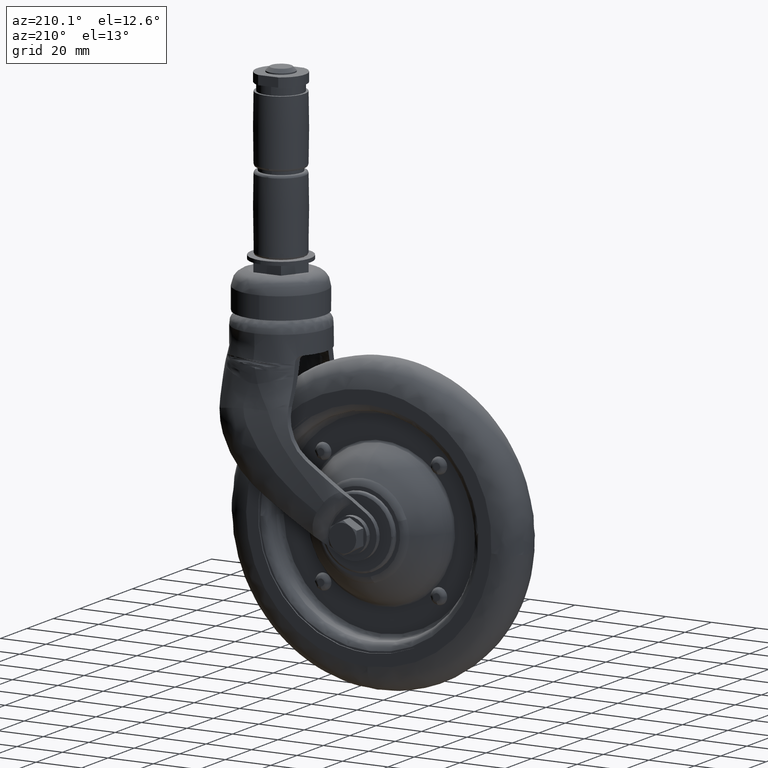
[diagram: clean part render]
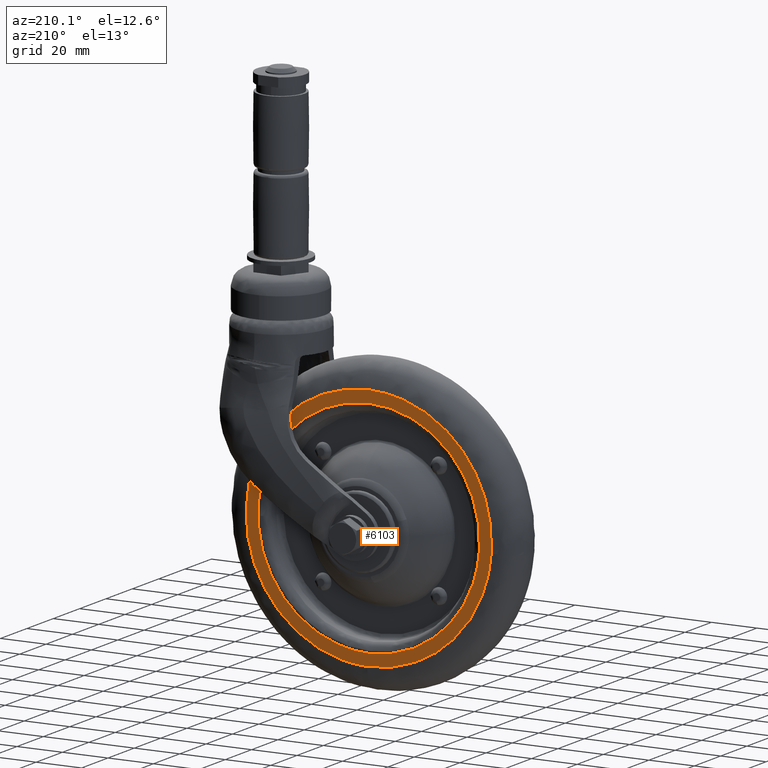
[diagram: same view with one face highlighted and labeled with its STEP entity id]
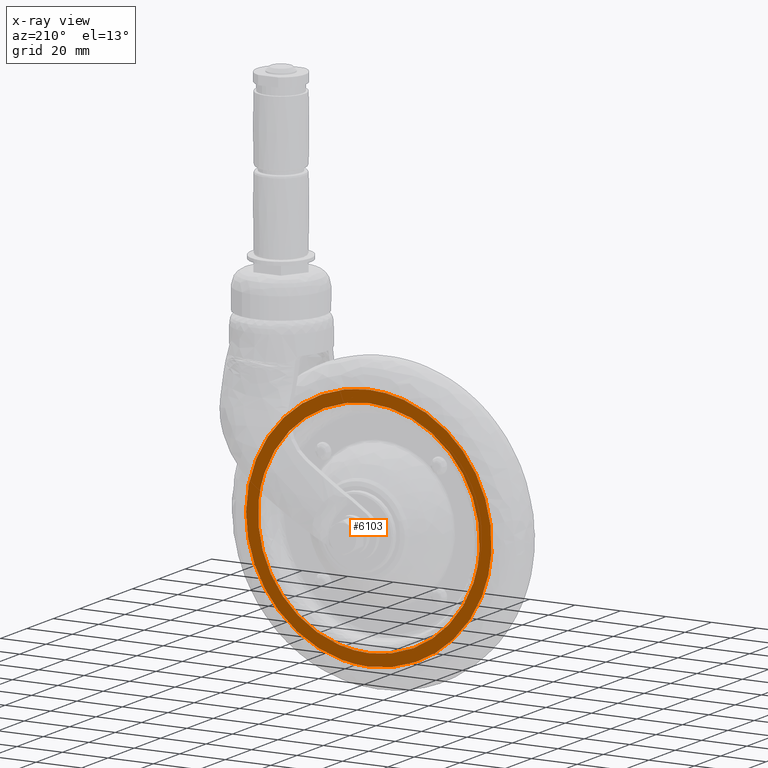
[diagram: x-ray of the same camera — body ghosted, the highlighted face saturated]
A machine part, auxiliary view. The second image highlights one B-rep face of the part: STEP entity #6103.
The next image is the same camera in x-ray: the body ghosted, the highlighted face saturated — about 0% of this face is hidden behind the body in this view.
In plain terms, the highlighted face is a freeform B-spline surface patch.
Its self-contained STEP definition (entity closure, byte-faithful):
#731=CARTESIAN_POINT('',(48.409216291978566,11.0,5.754153108510607));
#732=VERTEX_POINT('',#731);
#738=CARTESIAN_POINT('',(0.0,11.0,-48.750000000000000));
#739=VERTEX_POINT('',#738);
#740=CARTESIAN_POINT('',(48.409216291978574,11.000000000000002,5.754153108510607));
#741=CARTESIAN_POINT('',(48.750000000000000,11.000000000000004,2.887167833846134));
#742=CARTESIAN_POINT('',(48.750000000000000,11.0,0.0));
#743=CARTESIAN_POINT('',(48.750000000000007,11.0,-48.750000000000007));
#744=CARTESIAN_POINT('',(0.0,11.0,-48.750000000000000));
#752=(BOUNDED_CURVE()B_SPLINE_CURVE(2,(#740,#741,#742,#743,#744),.UNSPECIFIED.,.F.,.U.)B_SPLINE_CURVE_WITH_KNOTS((3,2,3),(0.229562528783874,0.250000000000000,0.500000000000000),.UNSPECIFIED.)CURVE()GEOMETRIC_REPRESENTATION_ITEM()RATIONAL_B_SPLINE_CURVE((0.956026862515906,0.976056013084406,1.0,0.707106781186547,1.0))REPRESENTATION_ITEM(''));
#753=EDGE_CURVE('',#732,#739,#752,.T.);
#755=CARTESIAN_POINT('',(-48.659073501435223,11.0,-2.976082320898624));
#756=VERTEX_POINT('',#755);
#757=CARTESIAN_POINT('',(0.0,11.0,-48.750000000000000));
#758=CARTESIAN_POINT('',(-45.859452847777590,10.999999999999998,-48.749999999999993));
#759=CARTESIAN_POINT('',(-48.659073501435223,10.999999999999998,-2.976082320898624));
#767=(BOUNDED_CURVE()B_SPLINE_CURVE(2,(#757,#758,#759),.UNSPECIFIED.,.F.,.U.)B_SPLINE_CURVE_WITH_KNOTS((3,3),(0.500000000000000,0.739333082741317),.UNSPECIFIED.)CURVE()GEOMETRIC_REPRESENTATION_ITEM()RATIONAL_B_SPLINE_CURVE((1.0,0.719603852109397,0.976072299926381))REPRESENTATION_ITEM(''));
#768=EDGE_CURVE('',#739,#756,#767,.T.);
#842=CARTESIAN_POINT('',(0.0,11.0,48.750000000000000));
#843=VERTEX_POINT('',#842);
#844=CARTESIAN_POINT('',(-48.659073501435223,10.999999999999998,-2.976082320898624));
#845=CARTESIAN_POINT('',(-48.750000000000007,11.0,-1.489430172453983));
#846=CARTESIAN_POINT('',(-48.750000000000000,11.0,0.0));
#847=CARTESIAN_POINT('',(-48.750000000000007,11.0,48.750000000000007));
#848=CARTESIAN_POINT('',(0.0,11.0,48.750000000000000));
#856=(BOUNDED_CURVE()B_SPLINE_CURVE(2,(#844,#845,#846,#847,#848),.UNSPECIFIED.,.F.,.U.)B_SPLINE_CURVE_WITH_KNOTS((3,2,3),(0.739333082741317,0.750000000000000,1.0),.UNSPECIFIED.)CURVE()GEOMETRIC_REPRESENTATION_ITEM()RATIONAL_B_SPLINE_CURVE((0.976072299926381,0.987502929077151,1.0,0.707106781186547,1.0))REPRESENTATION_ITEM(''));
#857=EDGE_CURVE('',#756,#843,#856,.T.);
#859=CARTESIAN_POINT('',(0.0,11.0,48.750000000000000));
#860=CARTESIAN_POINT('',(43.298522399489805,11.0,48.750000000000000));
#861=CARTESIAN_POINT('',(48.409216291978574,11.000000000000002,5.754153108510607));
#869=(BOUNDED_CURVE()B_SPLINE_CURVE(2,(#859,#860,#861),.UNSPECIFIED.,.F.,.U.)B_SPLINE_CURVE_WITH_KNOTS((3,3),(0.0,0.229562528783874),.UNSPECIFIED.)CURVE()GEOMETRIC_REPRESENTATION_ITEM()RATIONAL_B_SPLINE_CURVE((1.0,0.731050768102141,0.956026862515906))REPRESENTATION_ITEM(''));
#870=EDGE_CURVE('',#843,#732,#869,.T.);
#3306=CARTESIAN_POINT('',(-53.868546391014618,11.0,-3.765595585905555));
#3307=VERTEX_POINT('',#3306);
#3308=CARTESIAN_POINT('',(0.0,11.0,54.0));
#3309=VERTEX_POINT('',#3308);
#3310=CARTESIAN_POINT('',(-53.868546391014625,10.999999999999993,-3.765595585905555));
#3311=CARTESIAN_POINT('',(-54.0,10.999999999999996,-1.885092257811561));
#3312=CARTESIAN_POINT('',(-54.0,11.0,0.0));
#3313=CARTESIAN_POINT('',(-54.0,11.0,54.0));
#3314=CARTESIAN_POINT('',(0.0,11.0,54.0));
#3322=(BOUNDED_CURVE()B_SPLINE_CURVE(2,(#3310,#3311,#3312,#3313,#3314),.UNSPECIFIED.,.F.,.U.)B_SPLINE_CURVE_WITH_KNOTS((3,2,3),(0.737833686531463,0.750000000000000,1.0),.UNSPECIFIED.)CURVE()GEOMETRIC_REPRESENTATION_ITEM()RATIONAL_B_SPLINE_CURVE((0.972879876379301,0.985746277148427,1.0,0.707106781186548,1.0))REPRESENTATION_ITEM(''));
#3323=EDGE_CURVE('',#3307,#3309,#3322,.T.);
#3376=CARTESIAN_POINT('',(0.678566154199037,11.0,-53.995736389655782));
#3377=VERTEX_POINT('',#3376);
#3393=CARTESIAN_POINT('',(0.0,11.0,54.0));
#3394=CARTESIAN_POINT('',(54.0,11.0,54.0));
#3395=CARTESIAN_POINT('',(54.0,11.0,0.0));
#3396=CARTESIAN_POINT('',(53.999999999999993,11.0,-53.325644214077222));
#3397=CARTESIAN_POINT('',(0.678566154199037,10.999999999999996,-53.995736389655775));
#3405=(BOUNDED_CURVE()B_SPLINE_CURVE(2,(#3393,#3394,#3395,#3396,#3397),.UNSPECIFIED.,.F.,.U.)B_SPLINE_CURVE_WITH_KNOTS((3,2,3),(0.0,0.250000000000000,0.497784295918702),.UNSPECIFIED.)CURVE()GEOMETRIC_REPRESENTATION_ITEM()RATIONAL_B_SPLINE_CURVE((1.0,0.707106781186548,1.0,0.709702639987786,0.994854295637047))REPRESENTATION_ITEM(''));
#3406=EDGE_CURVE('',#3309,#3377,#3405,.T.);
#3434=CARTESIAN_POINT('',(0.0,11.0,-54.0));
#3435=VERTEX_POINT('',#3434);
#3436=CARTESIAN_POINT('',(0.0,11.0,-54.0));
#3437=CARTESIAN_POINT('',(-50.356989751319922,11.0,-54.000000000000007));
#3438=CARTESIAN_POINT('',(-53.868546391014618,11.0,-3.765595585905555));
#3446=(BOUNDED_CURVE()B_SPLINE_CURVE(2,(#3436,#3437,#3438),.UNSPECIFIED.,.F.,.U.)B_SPLINE_CURVE_WITH_KNOTS((3,3),(0.500000000000000,0.737833686531463),.UNSPECIFIED.)CURVE()GEOMETRIC_REPRESENTATION_ITEM()RATIONAL_B_SPLINE_CURVE((1.0,0.721360504038120,0.972879876379302))REPRESENTATION_ITEM(''));
#3447=EDGE_CURVE('',#3435,#3307,#3446,.T.);
#3449=CARTESIAN_POINT('',(0.678566154199037,11.0,-53.995736389655775));
#3450=CARTESIAN_POINT('',(0.339296472026722,11.000000000000002,-53.999999999999986));
#3451=CARTESIAN_POINT('',(0.0,11.0,-54.0));
#3459=(BOUNDED_CURVE()B_SPLINE_CURVE(2,(#3449,#3450,#3451),.UNSPECIFIED.,.F.,.U.)B_SPLINE_CURVE_WITH_KNOTS((3,3),(0.497784295918702,0.500000000000000),.UNSPECIFIED.)CURVE()GEOMETRIC_REPRESENTATION_ITEM()RATIONAL_B_SPLINE_CURVE((0.994854295637046,0.997404141198762,1.0))REPRESENTATION_ITEM(''));
#3460=EDGE_CURVE('',#3377,#3435,#3459,.T.);
#6086=CARTESIAN_POINT('',(-59.388078121882089,11.0,59.394599790675052));
#6087=CARTESIAN_POINT('',(-59.388078121882089,11.0,-59.394602687460782));
#6088=CARTESIAN_POINT('',(59.393176309448961,11.0,59.394599790675052));
#6089=CARTESIAN_POINT('',(59.393176309448961,11.0,-59.394602687460782));
#6090=B_SPLINE_SURFACE_WITH_KNOTS('',1,1,((#6086,#6088),(#6087,#6089)),.UNSPECIFIED.,.F.,.F.,.U.,(2,2),(2,2),(0.0,118.789202478135810),(0.0,118.781254431331010),.UNSPECIFIED.);
#6091=ORIENTED_EDGE('',*,*,#3406,.T.);
#6092=ORIENTED_EDGE('',*,*,#3460,.T.);
#6093=ORIENTED_EDGE('',*,*,#3447,.T.);
#6094=ORIENTED_EDGE('',*,*,#3323,.T.);
#6095=EDGE_LOOP('',(#6091,#6092,#6093,#6094));
#6096=FACE_OUTER_BOUND('',#6095,.T.);
#6097=ORIENTED_EDGE('',*,*,#768,.F.);
#6098=ORIENTED_EDGE('',*,*,#753,.F.);
#6099=ORIENTED_EDGE('',*,*,#870,.F.);
#6100=ORIENTED_EDGE('',*,*,#857,.F.);
#6101=EDGE_LOOP('',(#6097,#6098,#6099,#6100));
#6102=FACE_BOUND('',#6101,.T.);
#6103=ADVANCED_FACE('',(#6096,#6102),#6090,.F.);